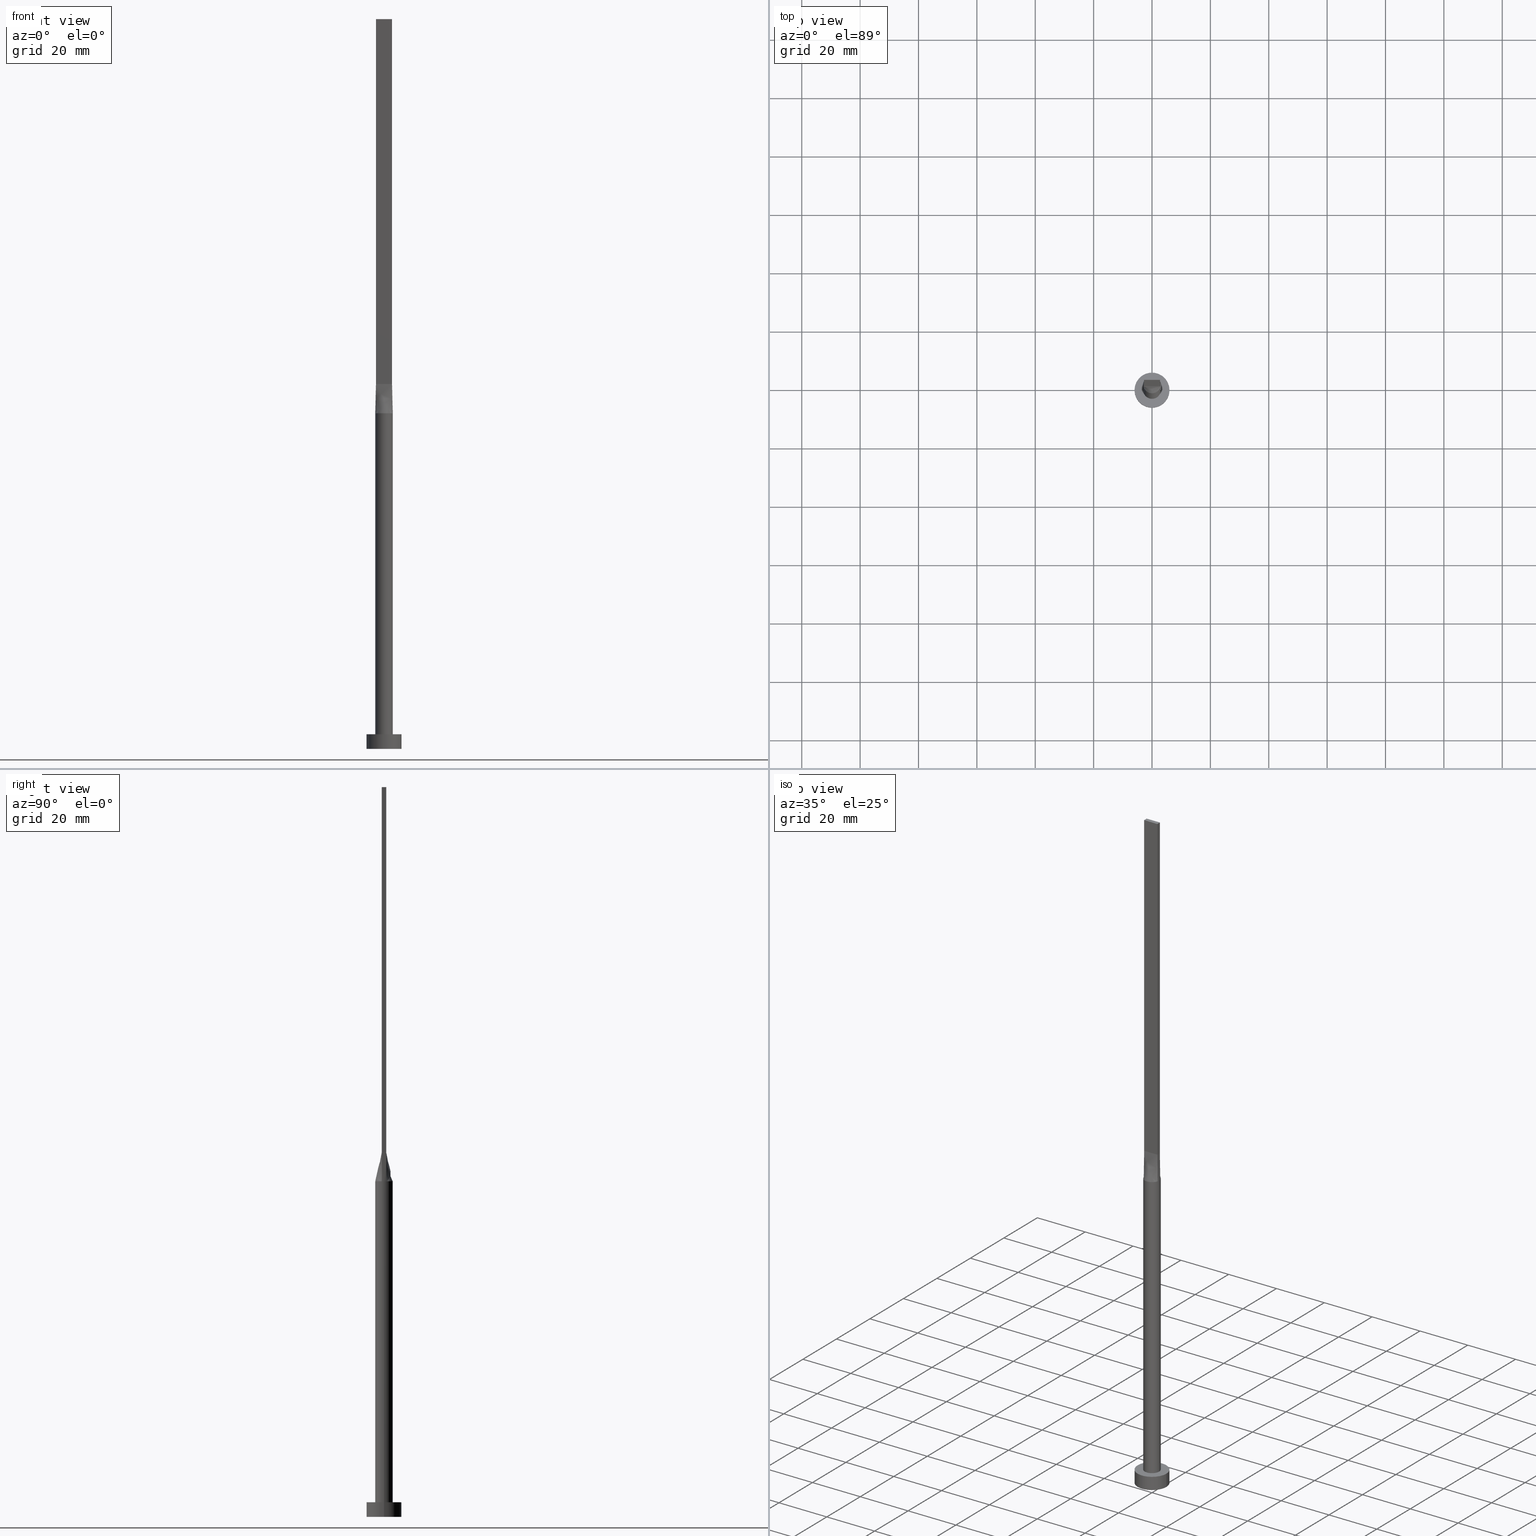
[diagram: canonical four-view strip — front | top / right | iso, engineering-drawing reading convention]
A machine part, canonical four-view strip (front | top / right | iso — engineering-drawing reading convention). The complete STEP part file that produces these views, byte-faithful:
ISO-10303-21;
HEADER;
FILE_DESCRIPTION (( 'STEP AP203' ),
    '1' );
FILE_NAME ('fb9e.STEP',
    '2023-02-13T11:39:00',
    ( '' ),
    ( '' ),
    'SwSTEP 2.0',
    'SolidWorks 2019',
    '' );
FILE_SCHEMA (( 'CONFIG_CONTROL_DESIGN' ));
ENDSEC;

DATA;
#1 = DIRECTION ( 'NONE',  ( 0.000000000000000000, 0.000000000000000000, 1.000000000000000000 ) ) ;
#2 = VECTOR ( 'NONE', #149, 1000.000000000000114 ) ;
#3 = PERSON_AND_ORGANIZATION ( #129, #578 ) ;
#4 = LINE ( 'NONE', #288, #537 ) ;
#5 = ORIENTED_EDGE ( 'NONE', *, *, #411, .T. ) ;
#6 = LINE ( 'NONE', #159, #24 ) ;
#7 = CARTESIAN_POINT ( 'NONE',  ( 2.248179627679384840, -2.014142483996542055, 114.9999999999999858 ) ) ;
#8 = DIRECTION ( 'NONE',  ( -0.000000000000000000, -0.000000000000000000, -1.000000000000000000 ) ) ;
#9 = ADVANCED_FACE ( 'NONE', ( #233 ), #440, .T. ) ;
#10 = ORIENTED_EDGE ( 'NONE', *, *, #433, .T. ) ;
#11 = DESIGN_CONTEXT ( 'detailed design', #465, 'design' ) ;
#12 = CARTESIAN_POINT ( 'NONE',  ( 2.830829925251657997, -1.022044525068636078, 115.0000000000000000 ) ) ;
#13 = CARTESIAN_POINT ( 'NONE',  ( 2.750000000000000000, -0.7499999999999997780, 125.0000000000000000 ) ) ;
#14 = ORIENTED_EDGE ( 'NONE', *, *, #191, .F. ) ;
#15 = CARTESIAN_POINT ( 'NONE',  ( 2.750000000000000000, -0.7499999999999997780, 250.0000000000000000 ) ) ;
#16 = VERTEX_POINT ( 'NONE', #431 ) ;
#17 = CARTESIAN_POINT ( 'NONE',  ( -2.750000000000000000, 0.7500000000000002220, 125.0000000000000000 ) ) ;
#18 = FACE_OUTER_BOUND ( 'NONE', #497, .T. ) ;
#19 = CARTESIAN_POINT ( 'NONE',  ( 0.000000000000000000, 0.000000000000000000, 250.0000000000000000 ) ) ;
#20 = DIRECTION ( 'NONE',  ( 0.000000000000000000, 0.000000000000000000, 1.000000000000000000 ) ) ;
#21 = CARTESIAN_POINT ( 'NONE',  ( -2.894291463713196677, 0.7893522173763257710, 115.0000000000000000 ) ) ;
#22 = CYLINDRICAL_SURFACE ( 'NONE', #270, 3.000000000000000444 ) ;
#23 = VECTOR ( 'NONE', #207, 1000.000000000000114 ) ;
#24 = VECTOR ( 'NONE', #252, 1000.000000000000000 ) ;
#25 = CARTESIAN_POINT ( 'NONE',  ( -2.750000000000000000, 0.7500000000000002220, 250.0000000000000000 ) ) ;
#26 = CARTESIAN_POINT ( 'NONE',  ( 0.9166666666666661856, -0.7499999999999995559, 125.0000000000000000 ) ) ;
#27 = CARTESIAN_POINT ( 'NONE',  ( -2.894291463713197121, -0.7893522173763259930, 115.0000000000000000 ) ) ;
#28 = VECTOR ( 'NONE', #254, 1000.000000000000000 ) ;
#29 = CARTESIAN_POINT ( 'NONE',  ( 6.000000000000000888, 7.347880794884120722E-16, 5.000000000000000000 ) ) ;
#30 = CARTESIAN_POINT ( 'NONE',  ( 0.000000000000000000, 0.000000000000000000, 5.000000000000000000 ) ) ;
#31 = CARTESIAN_POINT ( 'NONE',  ( 0.3818979204996068022, -3.000000000000001332, 114.9999999999999858 ) ) ;
#32 = VERTEX_POINT ( 'NONE', #138 ) ;
#33 = CARTESIAN_POINT ( 'NONE',  ( 3.000000000000000444, 0.2678361673275868049, 114.9999999999999858 ) ) ;
#34 = CARTESIAN_POINT ( 'NONE',  ( -6.000000000000000888, 0.000000000000000000, 5.000000000000000000 ) ) ;
#35 = CARTESIAN_POINT ( 'NONE',  ( -0.4583333333333337589, -0.7499999999999995559, 125.0000000000000000 ) ) ;
#36 = ORIENTED_EDGE ( 'NONE', *, *, #62, .T. ) ;
#37 = DIRECTION ( 'NONE',  ( 1.000000000000000000, 0.000000000000000000, 0.000000000000000000 ) ) ;
#38 = VECTOR ( 'NONE', #438, 1000.000000000000114 ) ;
#39 = CARTESIAN_POINT ( 'NONE',  ( 2.750000000000000000, 0.5000000000000003331, 125.0000000000000000 ) ) ;
#40 = APPROVAL_DATE_TIME ( #375, #320 ) ;
#41 = FACE_OUTER_BOUND ( 'NONE', #239, .T. ) ;
#42 = B_SPLINE_CURVE_WITH_KNOTS ( 'NONE', 3,
 ( #509, #513, #215, #176, #227, #344, #74, #471, #556, #72, #314, #119, #121, #511, #69, #396, #123, #301 ),
 .UNSPECIFIED., .F., .F.,
 ( 4, 2, 2, 2, 2, 2, 2, 2, 4 ),
 ( 0.000000000000000000, 0.1250000000000000000, 0.2500000000000000000, 0.3750000000000000000, 0.5000000000000000000, 0.6250000000000000000, 0.7500000000000000000, 0.8750000000000000000, 1.000000000000000000 ),
 .UNSPECIFIED. ) ;
#43 = EDGE_CURVE ( 'NONE', #16, #478, #543, .T. ) ;
#44 = APPROVAL_STATUS ( 'not_yet_approved' ) ;
#45 = EDGE_LOOP ( 'NONE', ( #395, #491, #36, #368, #581, #401 ) ) ;
#46 = ORIENTED_EDGE ( 'NONE', *, *, #384, .T. ) ;
#47 = VERTEX_POINT ( 'NONE', #265 ) ;
#48 = APPROVAL_STATUS ( 'not_yet_approved' ) ;
#49 = ORIENTED_EDGE ( 'NONE', *, *, #271, .T. ) ;
#50 = ORIENTED_EDGE ( 'NONE', *, *, #466, .F. ) ;
#51 = PERSON_AND_ORGANIZATION_ROLE ( 'classification_officer' ) ;
#52 = CC_DESIGN_SECURITY_CLASSIFICATION ( #353, ( #203 ) ) ;
#53 = PLANE ( 'NONE',  #550 ) ;
#54 = APPLICATION_PROTOCOL_DEFINITION ( 'international standard', 'config_control_design', 1994, #465 ) ;
#55 = DIRECTION ( 'NONE',  ( 1.000000000000000000, 0.000000000000000000, 0.000000000000000000 ) ) ;
#56 = CARTESIAN_POINT ( 'NONE',  ( 2.520833333333333037, 0.7500000000000002220, 125.0000000000000000 ) ) ;
#57 = VERTEX_POINT ( 'NONE', #29 ) ;
#58 = DIRECTION ( 'NONE',  ( 0.000000000000000000, 0.000000000000000000, 1.000000000000000000 ) ) ;
#59 = CARTESIAN_POINT ( 'NONE',  ( 0.000000000000000000, 0.000000000000000000, 5.000000000000000000 ) ) ;
#60 = VECTOR ( 'NONE', #308, 1000.000000000000000 ) ;
#61 = CARTESIAN_POINT ( 'NONE',  ( 1.604166666666666297, -0.7499999999999997780, 125.0000000000000000 ) ) ;
#62 = EDGE_CURVE ( 'NONE', #160, #108, #132, .T. ) ;
#63 = FACE_OUTER_BOUND ( 'NONE', #373, .T. ) ;
#64 = CARTESIAN_POINT ( 'NONE',  ( 1.604166666666666519, 0.7500000000000002220, 125.0000000000000000 ) ) ;
#65 = CIRCLE ( 'NONE', #390, 6.000000000000000888 ) ;
#66 = LINE ( 'NONE', #164, #376 ) ;
#67 = PLANE ( 'NONE',  #323 ) ;
#68 = ORIENTED_EDGE ( 'NONE', *, *, #191, .T. ) ;
#69 = CARTESIAN_POINT ( 'NONE',  ( -2.442412046818596139, 1.765588549521969641, 115.0000000000000142 ) ) ;
#70 = CYLINDRICAL_SURFACE ( 'NONE', #181, 3.000000000000000444 ) ;
#71 = EDGE_CURVE ( 'NONE', #444, #286, #328, .T. ) ;
#72 = CARTESIAN_POINT ( 'NONE',  ( -0.3818979204996078569, 3.000000000000000888, 114.9999999999999858 ) ) ;
#73 = VECTOR ( 'NONE', #541, 1000.000000000000000 ) ;
#74 = CARTESIAN_POINT ( 'NONE',  ( 1.447928580458859305, 2.653161878569118670, 115.0000000000000142 ) ) ;
#75 = AXIS2_PLACEMENT_3D ( 'NONE', #474, #435, #84 ) ;
#76 = LINE ( 'NONE', #355, #60 ) ;
#77 = ORIENTED_EDGE ( 'NONE', *, *, #100, .T. ) ;
#78 = CARTESIAN_POINT ( 'NONE',  ( 0.000000000000000000, 0.000000000000000000, 115.0000000000000000 ) ) ;
#79 = CARTESIAN_POINT ( 'NONE',  ( 0.000000000000000000, 0.000000000000000000, 0.000000000000000000 ) ) ;
#80 = VECTOR ( 'NONE', #423, 1000.000000000000000 ) ;
#81 = ORIENTED_EDGE ( 'NONE', *, *, #470, .T. ) ;
#82 = AXIS2_PLACEMENT_3D ( 'NONE', #79, #255, #305 ) ;
#83 = ORIENTED_EDGE ( 'NONE', *, *, #135, .T. ) ;
#84 = DIRECTION ( 'NONE',  ( 1.000000000000000000, -5.329070518200751394E-15, 0.000000000000000000 ) ) ;
#85 = CARTESIAN_POINT ( 'NONE',  ( -0.3818979204996094667, -3.000000000000000000, 115.0000000000000142 ) ) ;
#86 = CARTESIAN_POINT ( 'NONE',  ( -2.442412046818594806, -1.765588549521968975, 114.9999999999999716 ) ) ;
#87 = ORIENTED_EDGE ( 'NONE', *, *, #433, .F. ) ;
#88 = DIRECTION ( 'NONE',  ( 0.000000000000000000, 0.000000000000000000, 1.000000000000000000 ) ) ;
#89 = PRODUCT_DEFINITION ( 'NEZN�M�', '', #203, #11 ) ;
#90 = VECTOR ( 'NONE', #524, 1000.000000000000000 ) ;
#91 = ORIENTED_EDGE ( 'NONE', *, *, #532, .T. ) ;
#92 = ADVANCED_FACE ( 'NONE', ( #18 ), #334, .T. ) ;
#93 = DIRECTION ( 'NONE',  ( 0.000000000000000000, 0.000000000000000000, 1.000000000000000000 ) ) ;
#94 = ORIENTED_EDGE ( 'NONE', *, *, #230, .F. ) ;
#95 = VECTOR ( 'NONE', #555, 1000.000000000000000 ) ;
#96 = DATE_AND_TIME ( #278, #508 ) ;
#97 = CARTESIAN_POINT ( 'NONE',  ( 0.000000000000000000, 0.000000000000000000, 115.0000000000000000 ) ) ;
#98 = ORIENTED_EDGE ( 'NONE', *, *, #135, .F. ) ;
#99 = PERSON_AND_ORGANIZATION ( #129, #578 ) ;
#100 = EDGE_CURVE ( 'NONE', #47, #444, #109, .T. ) ;
#101 = CARTESIAN_POINT ( 'NONE',  ( -2.248179627679385728, 2.014142483996540278, 114.9999999999999858 ) ) ;
#102 = ORIENTED_EDGE ( 'NONE', *, *, #329, .T. ) ;
#103 = UNCERTAINTY_MEASURE_WITH_UNIT (LENGTH_MEASURE( 1.000000000000000082E-05 ), #217, 'distance_accuracy_value', 'NONE');
#104 = PERSON_AND_ORGANIZATION ( #129, #578 ) ;
#105 = CARTESIAN_POINT ( 'NONE',  ( -2.442412046818596139, 1.765588549521969641, 115.0000000000000142 ) ) ;
#106 = ORIENTED_EDGE ( 'NONE', *, *, #501, .F. ) ;
#107 = CARTESIAN_POINT ( 'NONE',  ( 0.000000000000000000, 0.000000000000000000, 5.000000000000000000 ) ) ;
#108 = VERTEX_POINT ( 'NONE', #424 ) ;
#109 = LINE ( 'NONE', #290, #289 ) ;
#110 = CARTESIAN_POINT ( 'NONE',  ( 2.442412046818595250, 1.765588549521970529, 114.9999999999999858 ) ) ;
#111 = CC_DESIGN_PERSON_AND_ORGANIZATION_ASSIGNMENT ( #99, #359, ( #203 ) ) ;
#112 = CARTESIAN_POINT ( 'NONE',  ( -2.894291463713197121, -0.7893522173763257710, 115.0000000000000000 ) ) ;
#113 = CIRCLE ( 'NONE', #450, 3.000000000000000444 ) ;
#114 = LOCAL_TIME ( 12, 39, 0.000000000000000000, #455 ) ;
#115 = CARTESIAN_POINT ( 'NONE',  ( -2.750000000000000000, -0.7499999999999994449, 125.0000000000000000 ) ) ;
#116 = FACE_OUTER_BOUND ( 'NONE', #416, .T. ) ;
#117 = DIRECTION ( 'NONE',  ( -1.000000000000000000, 0.000000000000000000, 0.000000000000000000 ) ) ;
#118 =( NAMED_UNIT ( * ) SI_UNIT ( $, .STERADIAN. ) SOLID_ANGLE_UNIT ( ) );
#119 = CARTESIAN_POINT ( 'NONE',  ( -1.447928580458858416, 2.653161878569119558, 115.0000000000000000 ) ) ;
#120 = CIRCLE ( 'NONE', #473, 3.000000000000000444 ) ;
#121 = CARTESIAN_POINT ( 'NONE',  ( -1.751288851749021491, 2.458468820606022565, 115.0000000000000142 ) ) ;
#122 = CARTESIAN_POINT ( 'NONE',  ( 2.822145731856598339, 0.7696761086881640512, 120.0000000000000000 ) ) ;
#123 = CARTESIAN_POINT ( 'NONE',  ( -2.830829925251659329, 1.022044525068634302, 115.0000000000000284 ) ) ;
#124 = VERTEX_POINT ( 'NONE', #169 ) ;
#125 = CIRCLE ( 'NONE', #295, 3.000000000000000444 ) ;
#126 = AXIS2_PLACEMENT_3D ( 'NONE', #405, #93, #573 ) ;
#127 = APPROVAL ( #48, 'NEUR�EN�' ) ;
#128 = CARTESIAN_POINT ( 'NONE',  ( 2.894291463713196677, -0.7893522173763282135, 115.0000000000000000 ) ) ;
#129 = PERSON ( 'NEUR�EN�', 'NEUR�EN�', 'NEUR�EN�', ('NEUR�EN�'), ('NEUR�EN�'), ('NEUR�EN�') ) ;
#130 = CARTESIAN_POINT ( 'NONE',  ( -1.751288851749022379, -2.458468820606022565, 114.9999999999999858 ) ) ;
#131 = ORIENTED_EDGE ( 'NONE', *, *, #245, .T. ) ;
#132 = CIRCLE ( 'NONE', #365, 3.000000000000000444 ) ;
#133 = VERTEX_POINT ( 'NONE', #17 ) ;
#134 = APPLICATION_PROTOCOL_DEFINITION ( 'international standard', 'config_control_design', 1994, #247 ) ;
#135 = EDGE_CURVE ( 'NONE', #32, #133, #484, .T. ) ;
#136 = DIRECTION ( 'NONE',  ( 1.000000000000000000, 0.000000000000000000, -0.000000000000000000 ) ) ;
#137 = EDGE_CURVE ( 'NONE', #224, #453, #155, .T. ) ;
#138 = CARTESIAN_POINT ( 'NONE',  ( -2.894506632021299541, 0.7894116946786272626, 115.0000000000000000 ) ) ;
#139 = APPROVAL_ROLE ( '' ) ;
#140 = CARTESIAN_POINT ( 'NONE',  ( -2.750000000000000000, -0.2500000000000013878, 125.0000000000000000 ) ) ;
#141 =( GEOMETRIC_REPRESENTATION_CONTEXT ( 3 ) GLOBAL_UNCERTAINTY_ASSIGNED_CONTEXT ( ( #103 ) ) GLOBAL_UNIT_ASSIGNED_CONTEXT ( ( #217, #346, #118 ) ) REPRESENTATION_CONTEXT ( 'NONE', 'WORKASPACE' ) );
#142 = ORIENTED_EDGE ( 'NONE', *, *, #272, .F. ) ;
#143 = PERSON_AND_ORGANIZATION ( #129, #578 ) ;
#144 = CC_DESIGN_DATE_AND_TIME_ASSIGNMENT ( #322, #229, ( #353 ) ) ;
#145 = ADVANCED_FACE ( 'NONE', ( #163 ), #275, .T. ) ;
#146 = DATE_AND_TIME ( #480, #167 ) ;
#147 = CARTESIAN_POINT ( 'NONE',  ( -1.751288851749021491, 2.458468820606022565, 115.0000000000000142 ) ) ;
#148 = ORIENTED_EDGE ( 'NONE', *, *, #152, .T. ) ;
#149 = DIRECTION ( 'NONE',  ( 0.01442753284129401174, -0.003934781683989196054, 0.9998881756422629552 ) ) ;
#150 = DIRECTION ( 'NONE',  ( 1.000000000000000000, 0.000000000000000000, 0.000000000000000000 ) ) ;
#151 = PERSON_AND_ORGANIZATION_ROLE ( 'design_owner' ) ;
#152 = EDGE_CURVE ( 'NONE', #57, #124, #65, .T. ) ;
#153 = CARTESIAN_POINT ( 'NONE',  ( 1.145833333333333259, 0.7500000000000003331, 125.0000000000000000 ) ) ;
#154 = ORIENTED_EDGE ( 'NONE', *, *, #551, .F. ) ;
#155 = LINE ( 'NONE', #333, #23 ) ;
#156 = DIRECTION ( 'NONE',  ( -0.000000000000000000, -0.000000000000000000, -1.000000000000000000 ) ) ;
#157 = CARTESIAN_POINT ( 'NONE',  ( 0.000000000000000000, 0.000000000000000000, 5.000000000000000000 ) ) ;
#158 = ORIENTED_EDGE ( 'NONE', *, *, #470, .F. ) ;
#159 = CARTESIAN_POINT ( 'NONE',  ( -3.000000000000000444, 0.000000000000000000, 115.0000000000000000 ) ) ;
#160 = VERTEX_POINT ( 'NONE', #436 ) ;
#161 = ADVANCED_FACE ( 'NONE', ( #389, #261 ), #516, .T. ) ;
#162 = DIRECTION ( 'NONE',  ( -1.000000000000000000, 0.000000000000000000, 0.000000000000000000 ) ) ;
#163 = FACE_OUTER_BOUND ( 'NONE', #349, .T. ) ;
#164 = CARTESIAN_POINT ( 'NONE',  ( 2.750000000000000000, 0.7500000000000002220, 250.0000000000000000 ) ) ;
#165 = LINE ( 'NONE', #338, #28 ) ;
#166 = FACE_OUTER_BOUND ( 'NONE', #258, .T. ) ;
#167 = LOCAL_TIME ( 12, 39, 0.000000000000000000, #282 ) ;
#168 = DIRECTION ( 'NONE',  ( -0.000000000000000000, -0.000000000000000000, -1.000000000000000000 ) ) ;
#169 = CARTESIAN_POINT ( 'NONE',  ( -6.000000000000000888, 0.000000000000000000, 5.000000000000000000 ) ) ;
#170 = CARTESIAN_POINT ( 'NONE',  ( -2.750000000000000000, 0.7500000000000002220, 125.0000000000000000 ) ) ;
#171 = DIRECTION ( 'NONE',  ( -1.000000000000000000, 0.000000000000000000, 0.000000000000000000 ) ) ;
#172 = ADVANCED_FACE ( 'NONE', ( #276 ), #510, .T. ) ;
#173 = CIRCLE ( 'NONE', #512, 6.000000000000000888 ) ;
#174 = CIRCLE ( 'NONE', #234, 3.000000000000000444 ) ;
#175 = CARTESIAN_POINT ( 'NONE',  ( -2.750000000000000000, -0.7499999999999994449, 250.0000000000000000 ) ) ;
#176 = CARTESIAN_POINT ( 'NONE',  ( 2.442412046818595250, 1.765588549521970529, 114.9999999999999858 ) ) ;
#177 = ADVANCED_FACE ( 'NONE', ( #179 ), #256, .F. ) ;
#178 = CARTESIAN_POINT ( 'NONE',  ( -2.291666666666666519, -0.7499999999999995559, 125.0000000000000000 ) ) ;
#179 = FACE_OUTER_BOUND ( 'NONE', #357, .T. ) ;
#180 = CARTESIAN_POINT ( 'NONE',  ( -2.750000000000000000, 0.7500000000000002220, 125.0000000000000000 ) ) ;
#181 = AXIS2_PLACEMENT_3D ( 'NONE', #78, #237, #210 ) ;
#182 = CARTESIAN_POINT ( 'NONE',  ( -0.7628506052746809596, -2.924692134573154245, 114.9999999999999858 ) ) ;
#183 = EDGE_LOOP ( 'NONE', ( #569, #148 ) ) ;
#184 = LINE ( 'NONE', #464, #374 ) ;
#185 = CARTESIAN_POINT ( 'NONE',  ( -2.750000000000000000, 0.2499999999999984457, 125.0000000000000000 ) ) ;
#186 = CARTESIAN_POINT ( 'NONE',  ( 2.750000000000000000, 0.2500000000000004441, 125.0000000000000000 ) ) ;
#187 = SECURITY_CLASSIFICATION_LEVEL ( 'unclassified' ) ;
#188 = DATE_AND_TIME ( #403, #114 ) ;
#189 = CIRCLE ( 'NONE', #567, 3.000000000000000444 ) ;
#190 = CC_DESIGN_PERSON_AND_ORGANIZATION_ASSIGNMENT ( #287, #51, ( #353 ) ) ;
#191 = EDGE_CURVE ( 'NONE', #202, #47, #214, .T. ) ;
#192 = ORIENTED_EDGE ( 'NONE', *, *, #358, .F. ) ;
#193 = CC_DESIGN_APPROVAL ( #320, ( #203 ) ) ;
#194 = DIRECTION ( 'NONE',  ( -0.000000000000000000, -0.000000000000000000, -1.000000000000000000 ) ) ;
#195 = APPROVAL_DATE_TIME ( #96, #127 ) ;
#196 = CARTESIAN_POINT ( 'NONE',  ( 3.000000000000000888, 4.817174831141495148E-17, 115.0000000000000000 ) ) ;
#197 = VERTEX_POINT ( 'NONE', #299 ) ;
#198 = APPROVAL_ROLE ( '' ) ;
#199 = EDGE_CURVE ( 'NONE', #47, #224, #387, .T. ) ;
#200 = AXIS2_PLACEMENT_3D ( 'NONE', #372, #162, #335 ) ;
#201 = CARTESIAN_POINT ( 'NONE',  ( 2.830829925251657997, 1.022044525068634302, 115.0000000000000000 ) ) ;
#202 = VERTEX_POINT ( 'NONE', #262 ) ;
#203 = PRODUCT_DEFINITION_FORMATION_WITH_SPECIFIED_SOURCE ( 'LIBOVOLN�', '', #576, .NOT_KNOWN. ) ;
#204 = PLANE ( 'NONE',  #413 ) ;
#205 = CARTESIAN_POINT ( 'NONE',  ( -2.894489875237701959, -0.7894071376467488577, 115.0000000000000000 ) ) ;
#206 = ORIENTED_EDGE ( 'NONE', *, *, #243, .T. ) ;
#207 = DIRECTION ( 'NONE',  ( -0.01442753284129405511, -0.003934781683989273249, -0.9998881756422629552 ) ) ;
#208 = FACE_OUTER_BOUND ( 'NONE', #45, .T. ) ;
#209 = CARTESIAN_POINT ( 'NONE',  ( 2.291666666666666519, -0.7499999999999997780, 125.0000000000000000 ) ) ;
#210 = DIRECTION ( 'NONE',  ( -1.000000000000000000, 0.000000000000000000, 0.000000000000000000 ) ) ;
#211 = DIRECTION ( 'NONE',  ( 1.000000000000000000, 0.000000000000000000, 0.000000000000000000 ) ) ;
#212 = DIRECTION ( 'NONE',  ( -0.000000000000000000, -0.000000000000000000, -1.000000000000000000 ) ) ;
#213 = FACE_OUTER_BOUND ( 'NONE', #500, .T. ) ;
#214 = LINE ( 'NONE', #221, #307 ) ;
#215 = CARTESIAN_POINT ( 'NONE',  ( 2.733316749964668446, 1.269511353635831341, 115.0000000000000142 ) ) ;
#216 = VECTOR ( 'NONE', #156, 1000.000000000000000 ) ;
#217 =( LENGTH_UNIT ( ) NAMED_UNIT ( * ) SI_UNIT ( .MILLI., .METRE. ) );
#218 = CARTESIAN_POINT ( 'NONE',  ( 2.894482401701604424, 0.7894050286368272662, 115.0000000000000000 ) ) ;
#219 = AXIS2_PLACEMENT_3D ( 'NONE', #273, #400, #571 ) ;
#220 = CC_DESIGN_APPROVAL ( #277, ( #89 ) ) ;
#221 = CARTESIAN_POINT ( 'NONE',  ( -2.750000000000000000, 0.7500000000000002220, 250.0000000000000000 ) ) ;
#222 = CARTESIAN_POINT ( 'NONE',  ( 3.000000000000000888, -0.2678361673275873600, 115.0000000000000142 ) ) ;
#223 = CARTESIAN_POINT ( 'NONE',  ( -1.833333333333333481, -0.7499999999999995559, 125.0000000000000000 ) ) ;
#224 = VERTEX_POINT ( 'NONE', #352 ) ;
#225 = CARTESIAN_POINT ( 'NONE',  ( -2.894291463713196677, 0.7893522173763264371, 115.0000000000000000 ) ) ;
#226 = ADVANCED_FACE ( 'NONE', ( #63 ), #67, .F. ) ;
#227 = CARTESIAN_POINT ( 'NONE',  ( 2.248179627679386172, 2.014142483996539834, 115.0000000000000142 ) ) ;
#228 = ORIENTED_EDGE ( 'NONE', *, *, #565, .T. ) ;
#229 = DATE_TIME_ROLE ( 'classification_date' ) ;
#230 = EDGE_CURVE ( 'NONE', #286, #317, #165, .T. ) ;
#231 = DIRECTION ( 'NONE',  ( 0.000000000000000000, -1.000000000000000000, 0.000000000000000000 ) ) ;
#232 = CC_DESIGN_PERSON_AND_ORGANIZATION_ASSIGNMENT ( #408, #498, ( #89 ) ) ;
#233 = FACE_OUTER_BOUND ( 'NONE', #439, .T. ) ;
#234 = AXIS2_PLACEMENT_3D ( 'NONE', #362, #88, #37 ) ;
#235 = DIRECTION ( 'NONE',  ( 0.000000000000000000, -0.000000000000000000, -1.000000000000000000 ) ) ;
#236 = CARTESIAN_POINT ( 'NONE',  ( -1.447928580458858416, 2.653161878569119558, 115.0000000000000000 ) ) ;
#237 = DIRECTION ( 'NONE',  ( -0.000000000000000000, -0.000000000000000000, -1.000000000000000000 ) ) ;
#238 = DIRECTION ( 'NONE',  ( 0.000000000000000000, 0.000000000000000000, 1.000000000000000000 ) ) ;
#239 = EDGE_LOOP ( 'NONE', ( #483, #321 ) ) ;
#240 = APPROVAL_ROLE ( '' ) ;
#241 = DIRECTION ( 'NONE',  ( -0.000000000000000000, -0.000000000000000000, -1.000000000000000000 ) ) ;
#242 = VERTEX_POINT ( 'NONE', #422 ) ;
#243 = EDGE_CURVE ( 'NONE', #242, #274, #342, .T. ) ;
#244 = ORIENTED_EDGE ( 'NONE', *, *, #466, .T. ) ;
#245 = EDGE_CURVE ( 'NONE', #478, #503, #120, .T. ) ;
#246 = AXIS2_PLACEMENT_3D ( 'NONE', #494, #58, #417 ) ;
#247 = APPLICATION_CONTEXT ( 'configuration controlled 3d designs of mechanical parts and assemblies' ) ;
#248 = CARTESIAN_POINT ( 'NONE',  ( 2.733316749964668446, 1.269511353635831341, 115.0000000000000142 ) ) ;
#249 = ORIENTED_EDGE ( 'NONE', *, *, #358, .T. ) ;
#250 = DIRECTION ( 'NONE',  ( -1.000000000000000000, 0.000000000000000000, 0.000000000000000000 ) ) ;
#251 = CARTESIAN_POINT ( 'NONE',  ( 1.447928580458859305, 2.653161878569118670, 115.0000000000000142 ) ) ;
#252 = DIRECTION ( 'NONE',  ( -0.000000000000000000, -0.000000000000000000, -1.000000000000000000 ) ) ;
#253 = FACE_OUTER_BOUND ( 'NONE', #460, .T. ) ;
#254 = DIRECTION ( 'NONE',  ( -0.000000000000000000, 1.000000000000000000, -0.000000000000000000 ) ) ;
#255 = DIRECTION ( 'NONE',  ( 0.000000000000000000, 0.000000000000000000, 1.000000000000000000 ) ) ;
#256 = PLANE ( 'NONE',  #354 ) ;
#257 = LINE ( 'NONE', #170, #345 ) ;
#258 = EDGE_LOOP ( 'NONE', ( #539, #68, #77, #228 ) ) ;
#259 = LINE ( 'NONE', #122, #38 ) ;
#260 = CC_DESIGN_DATE_AND_TIME_ASSIGNMENT ( #188, #325, ( #89 ) ) ;
#261 = FACE_OUTER_BOUND ( 'NONE', #183, .T. ) ;
#262 = CARTESIAN_POINT ( 'NONE',  ( -2.750000000000000000, 0.7500000000000002220, 250.0000000000000000 ) ) ;
#263 = CIRCLE ( 'NONE', #82, 6.000000000000000888 ) ;
#264 = ORIENTED_EDGE ( 'NONE', *, *, #62, .F. ) ;
#265 = CARTESIAN_POINT ( 'NONE',  ( -2.750000000000000000, -0.7499999999999994449, 250.0000000000000000 ) ) ;
#266 = CARTESIAN_POINT ( 'NONE',  ( -1.145833333333333703, -0.7499999999999995559, 125.0000000000000000 ) ) ;
#267 = VERTEX_POINT ( 'NONE', #476 ) ;
#268 = ADVANCED_BREP_SHAPE_REPRESENTATION ( 'fb9e', ( #528, #126 ), #141 ) ;
#269 = CARTESIAN_POINT ( 'NONE',  ( -1.447928580458859749, -2.653161878569118226, 114.9999999999999858 ) ) ;
#270 = AXIS2_PLACEMENT_3D ( 'NONE', #386, #168, #171 ) ;
#271 = EDGE_CURVE ( 'NONE', #503, #317, #259, .T. ) ;
#272 = EDGE_CURVE ( 'NONE', #224, #286, #547, .T. ) ;
#273 = CARTESIAN_POINT ( 'NONE',  ( 0.000000000000000000, 0.000000000000000000, 0.000000000000000000 ) ) ;
#274 = VERTEX_POINT ( 'NONE', #414 ) ;
#275 = B_SPLINE_SURFACE_WITH_KNOTS ( 'NONE', 3, 1, ( 
 ( #112, #577 ),
 ( #487, #492 ),
 ( #366, #178 ),
 ( #86, #223 ),
 ( #312, #310 ),
 ( #130, #266 ),
 ( #269, #394 ),
 ( #182, #35 ),
 ( #85, #475 ),
 ( #31, #519 ),
 ( #566, #391 ),
 ( #351, #26 ),
 ( #437, #418 ),
 ( #7, #61 ),
 ( #542, #291 ),
 ( #410, #209 ),
 ( #12, #546 ),
 ( #331, #456 ) ),
 .UNSPECIFIED., .F., .F., .F.,
 ( 4, 2, 2, 2, 2, 2, 2, 2, 4 ),
 ( 2, 2 ),
 ( 0.000000000000000000, 0.1250000000000000000, 0.2500000000000000000, 0.3750000000000000000, 0.5000000000000000000, 0.6250000000000000000, 0.7500000000000000000, 0.8750000000000000000, 1.000000000000000000 ),
 ( 0.000000000000000000, 1.000000000000000000 ),
 .UNSPECIFIED. ) ;
#276 = FACE_OUTER_BOUND ( 'NONE', #481, .T. ) ;
#277 = APPROVAL ( #44, 'NEUR�EN�' ) ;
#278 = CALENDAR_DATE ( 2023, 13, 2 ) ;
#279 = ORIENTED_EDGE ( 'NONE', *, *, #501, .T. ) ;
#280 = ORIENTED_EDGE ( 'NONE', *, *, #43, .T. ) ;
#281 = EDGE_CURVE ( 'NONE', #197, #202, #66, .T. ) ;
#282 = COORDINATED_UNIVERSAL_TIME_OFFSET ( 1, 0, .AHEAD. ) ;
#283 = DIRECTION ( 'NONE',  ( 0.000000000000000000, 0.000000000000000000, 1.000000000000000000 ) ) ;
#284 = B_SPLINE_SURFACE_WITH_KNOTS ( 'NONE', 3, 1, ( 
 ( #367, #535 ),
 ( #201, #56 ),
 ( #248, #409 ),
 ( #110, #298 ),
 ( #461, #64 ),
 ( #406, #153 ),
 ( #251, #420 ),
 ( #330, #383 ),
 ( #499, #549 ),
 ( #339, #533 ),
 ( #452, #462 ),
 ( #236, #580 ),
 ( #147, #326 ),
 ( #101, #285 ),
 ( #105, #426 ),
 ( #388, #425 ),
 ( #558, #560 ),
 ( #21, #428 ) ),
 .UNSPECIFIED., .F., .F., .F.,
 ( 4, 2, 2, 2, 2, 2, 2, 2, 4 ),
 ( 2, 2 ),
 ( 0.000000000000000000, 0.1250000000000000000, 0.2500000000000000000, 0.3750000000000000000, 0.5000000000000000000, 0.6250000000000000000, 0.7500000000000000000, 0.8750000000000000000, 1.000000000000000000 ),
 ( 0.000000000000000000, 1.000000000000000000 ),
 .UNSPECIFIED. ) ;
#285 = CARTESIAN_POINT ( 'NONE',  ( -1.604166666666666741, 0.7500000000000002220, 125.0000000000000000 ) ) ;
#286 = VERTEX_POINT ( 'NONE', #13 ) ;
#287 = PERSON_AND_ORGANIZATION ( #129, #578 ) ;
#288 = CARTESIAN_POINT ( 'NONE',  ( 2.822145731856598339, -0.7696761086881637182, 120.0000000000000000 ) ) ;
#289 = VECTOR ( 'NONE', #495, 1000.000000000000000 ) ;
#290 = CARTESIAN_POINT ( 'NONE',  ( -2.750000000000000000, -0.7499999999999994449, 250.0000000000000000 ) ) ;
#291 = CARTESIAN_POINT ( 'NONE',  ( 1.833333333333333037, -0.7499999999999997780, 125.0000000000000000 ) ) ;
#292 = PLANE ( 'NONE',  #200 ) ;
#293 = ORIENTED_EDGE ( 'NONE', *, *, #411, .F. ) ;
#294 = CARTESIAN_POINT ( 'NONE',  ( 2.750000000000000000, 0.7500000000000002220, 250.0000000000000000 ) ) ;
#295 = AXIS2_PLACEMENT_3D ( 'NONE', #347, #559, #296 ) ;
#296 = DIRECTION ( 'NONE',  ( 1.000000000000000000, 0.000000000000000000, 0.000000000000000000 ) ) ;
#297 = APPROVAL_PERSON_ORGANIZATION ( #3, #127, #240 ) ;
#298 = CARTESIAN_POINT ( 'NONE',  ( 1.833333333333333037, 0.7500000000000002220, 125.0000000000000000 ) ) ;
#299 = CARTESIAN_POINT ( 'NONE',  ( 2.750000000000000000, 0.7500000000000002220, 250.0000000000000000 ) ) ;
#300 = DIRECTION ( 'NONE',  ( -0.000000000000000000, -0.000000000000000000, -1.000000000000000000 ) ) ;
#301 = CARTESIAN_POINT ( 'NONE',  ( -2.894506632021299541, 0.7894116946786272626, 115.0000000000000000 ) ) ;
#302 = AXIS2_PLACEMENT_3D ( 'NONE', #157, #241, #415 ) ;
#303 = DIRECTION ( 'NONE',  ( -0.000000000000000000, 0.000000000000000000, -1.000000000000000000 ) ) ;
#304 = LOCAL_TIME ( 12, 39, 0.000000000000000000, #531 ) ;
#305 = DIRECTION ( 'NONE',  ( 1.000000000000000000, 0.000000000000000000, 0.000000000000000000 ) ) ;
#306 = ADVANCED_FACE ( 'NONE', ( #253 ), #204, .F. ) ;
#307 = VECTOR ( 'NONE', #517, 1000.000000000000000 ) ;
#308 = DIRECTION ( 'NONE',  ( 0.000000000000000000, 1.000000000000000000, 0.000000000000000000 ) ) ;
#309 = CARTESIAN_POINT ( 'NONE',  ( 2.894291463713196677, 0.7893522173763277694, 115.0000000000000000 ) ) ;
#310 = CARTESIAN_POINT ( 'NONE',  ( -1.604166666666666963, -0.7499999999999995559, 125.0000000000000000 ) ) ;
#311 = CARTESIAN_POINT ( 'NONE',  ( 2.963522232943966106, -0.5355060635301738259, 114.9999999999999858 ) ) ;
#312 = CARTESIAN_POINT ( 'NONE',  ( -2.248179627679386616, -2.014142483996539390, 115.0000000000000142 ) ) ;
#313 = ORIENTED_EDGE ( 'NONE', *, *, #199, .T. ) ;
#314 = CARTESIAN_POINT ( 'NONE',  ( -0.7628506052746797383, 2.924692134573155133, 115.0000000000000142 ) ) ;
#315 = ORIENTED_EDGE ( 'NONE', *, *, #520, .T. ) ;
#316 = PERSON_AND_ORGANIZATION ( #129, #578 ) ;
#317 = VERTEX_POINT ( 'NONE', #402 ) ;
#318 = CARTESIAN_POINT ( 'NONE',  ( -2.963522232943966106, -0.5355060635301720495, 115.0000000000000142 ) ) ;
#319 = ORIENTED_EDGE ( 'NONE', *, *, #137, .F. ) ;
#320 = APPROVAL ( #534, 'NEUR�EN�' ) ;
#321 = ORIENTED_EDGE ( 'NONE', *, *, #532, .F. ) ;
#322 = DATE_AND_TIME ( #399, #397 ) ;
#323 = AXIS2_PLACEMENT_3D ( 'NONE', #419, #382, #548 ) ;
#324 = ORIENTED_EDGE ( 'NONE', *, *, #553, .F. ) ;
#325 = DATE_TIME_ROLE ( 'creation_date' ) ;
#326 = CARTESIAN_POINT ( 'NONE',  ( -1.145833333333333259, 0.7500000000000002220, 125.0000000000000000 ) ) ;
#327 = ORIENTED_EDGE ( 'NONE', *, *, #71, .T. ) ;
#328 = LINE ( 'NONE', #538, #216 ) ;
#329 = EDGE_CURVE ( 'NONE', #453, #16, #174, .T. ) ;
#330 = CARTESIAN_POINT ( 'NONE',  ( 0.7628506052746800714, 2.924692134573154689, 115.0000000000000000 ) ) ;
#331 = CARTESIAN_POINT ( 'NONE',  ( 2.894291463713196677, -0.7893522173763275473, 115.0000000000000000 ) ) ;
#332 = LINE ( 'NONE', #294, #505 ) ;
#333 = CARTESIAN_POINT ( 'NONE',  ( -2.822145731856598783, -0.7696761086881626079, 120.0000000000000000 ) ) ;
#334 = CYLINDRICAL_SURFACE ( 'NONE', #427, 6.000000000000000888 ) ;
#335 = DIRECTION ( 'NONE',  ( 0.000000000000000000, 0.000000000000000000, 1.000000000000000000 ) ) ;
#336 = VECTOR ( 'NONE', #8, 1000.000000000000000 ) ;
#337 = DIRECTION ( 'NONE',  ( 1.000000000000000000, -5.913830031739115543E-17, 0.000000000000000000 ) ) ;
#338 = CARTESIAN_POINT ( 'NONE',  ( 2.750000000000000000, 0.7500000000000002220, 125.0000000000000000 ) ) ;
#339 = CARTESIAN_POINT ( 'NONE',  ( -0.3818979204996078569, 3.000000000000000888, 114.9999999999999858 ) ) ;
#340 = EDGE_LOOP ( 'NONE', ( #378, #324, #279, #206 ) ) ;
#341 = LINE ( 'NONE', #34, #80 ) ;
#342 = CIRCLE ( 'NONE', #219, 6.000000000000000888 ) ;
#343 = DIRECTION ( 'NONE',  ( 0.000000000000000000, 0.000000000000000000, 1.000000000000000000 ) ) ;
#344 = CARTESIAN_POINT ( 'NONE',  ( 1.751288851749022379, 2.458468820606022565, 114.9999999999999858 ) ) ;
#345 = VECTOR ( 'NONE', #552, 1000.000000000000000 ) ;
#346 =( NAMED_UNIT ( * ) PLANE_ANGLE_UNIT ( ) SI_UNIT ( $, .RADIAN. ) );
#347 = CARTESIAN_POINT ( 'NONE',  ( 0.000000000000000000, 0.000000000000000000, 115.0000000000000000 ) ) ;
#348 = AXIS2_PLACEMENT_3D ( 'NONE', #30, #283, #136 ) ;
#349 = EDGE_LOOP ( 'NONE', ( #102, #10, #142, #572 ) ) ;
#350 = CARTESIAN_POINT ( 'NONE',  ( -2.750000000000000000, 0.7500000000000002220, 125.0000000000000000 ) ) ;
#351 = CARTESIAN_POINT ( 'NONE',  ( 1.447928580458857972, -2.653161878569119558, 114.9999999999999858 ) ) ;
#352 = CARTESIAN_POINT ( 'NONE',  ( -2.750000000000000000, -0.7499999999999994449, 125.0000000000000000 ) ) ;
#353 = SECURITY_CLASSIFICATION ( '', '', #187 ) ;
#354 = AXIS2_PLACEMENT_3D ( 'NONE', #25, #557, #303 ) ;
#355 = CARTESIAN_POINT ( 'NONE',  ( 2.750000000000000000, -0.7499999999999997780, 250.0000000000000000 ) ) ;
#356 = COORDINATED_UNIVERSAL_TIME_OFFSET ( 1, 0, .AHEAD. ) ;
#357 = EDGE_LOOP ( 'NONE', ( #5, #521, #14, #81 ) ) ;
#358 = EDGE_CURVE ( 'NONE', #267, #453, #125, .T. ) ;
#359 = PERSON_AND_ORGANIZATION_ROLE ( 'creator' ) ;
#360 = APPROVAL_PERSON_ORGANIZATION ( #143, #277, #139 ) ;
#361 = CARTESIAN_POINT ( 'NONE',  ( -2.963522232943965662, 0.5355060635301726046, 114.9999999999999858 ) ) ;
#362 = CARTESIAN_POINT ( 'NONE',  ( 0.000000000000000000, 0.000000000000000000, 115.0000000000000000 ) ) ;
#363 = ORIENTED_EDGE ( 'NONE', *, *, #43, .F. ) ;
#364 = DIRECTION ( 'NONE',  ( 0.000000000000000000, 0.000000000000000000, 1.000000000000000000 ) ) ;
#365 = AXIS2_PLACEMENT_3D ( 'NONE', #393, #1, #150 ) ;
#366 = CARTESIAN_POINT ( 'NONE',  ( -2.733316749964668446, -1.269511353635829787, 114.9999999999999858 ) ) ;
#367 = CARTESIAN_POINT ( 'NONE',  ( 2.894291463713197121, 0.7893522173763263261, 115.0000000000000000 ) ) ;
#368 = ORIENTED_EDGE ( 'NONE', *, *, #371, .F. ) ;
#369 = CARTESIAN_POINT ( 'NONE',  ( -2.822145731856598339, 0.7696761086881630520, 120.0000000000000000 ) ) ;
#370 = APPROVAL_DATE_TIME ( #146, #277 ) ;
#371 = EDGE_CURVE ( 'NONE', #267, #108, #6, .T. ) ;
#372 = CARTESIAN_POINT ( 'NONE',  ( 2.750000000000000000, -0.7499999999999997780, 250.0000000000000000 ) ) ;
#373 = EDGE_LOOP ( 'NONE', ( #575, #449, #562, #313 ) ) ;
#374 = VECTOR ( 'NONE', #300, 1000.000000000000000 ) ;
#375 = DATE_AND_TIME ( #488, #304 ) ;
#376 = VECTOR ( 'NONE', #250, 1000.000000000000000 ) ;
#377 = CARTESIAN_POINT ( 'NONE',  ( 3.000000000000000444, 3.673940397442060361E-16, 115.0000000000000000 ) ) ;
#378 = ORIENTED_EDGE ( 'NONE', *, *, #520, .F. ) ;
#379 = CYLINDRICAL_SURFACE ( 'NONE', #302, 6.000000000000000888 ) ;
#380 = ORIENTED_EDGE ( 'NONE', *, *, #565, .F. ) ;
#381 = CC_DESIGN_PERSON_AND_ORGANIZATION_ASSIGNMENT ( #316, #451, ( #203 ) ) ;
#382 = DIRECTION ( 'NONE',  ( 5.913830031739115543E-17, 1.000000000000000000, -0.000000000000000000 ) ) ;
#383 = CARTESIAN_POINT ( 'NONE',  ( 0.4583333333333333703, 0.7500000000000003331, 125.0000000000000000 ) ) ;
#384 = EDGE_CURVE ( 'NONE', #32, #267, #113, .T. ) ;
#385 = LINE ( 'NONE', #350, #90 ) ;
#386 = CARTESIAN_POINT ( 'NONE',  ( 0.000000000000000000, 0.000000000000000000, 115.0000000000000000 ) ) ;
#387 = LINE ( 'NONE', #175, #95 ) ;
#388 = CARTESIAN_POINT ( 'NONE',  ( -2.733316749964668002, 1.269511353635830453, 115.0000000000000284 ) ) ;
#389 = FACE_BOUND ( 'NONE', #536, .T. ) ;
#390 = AXIS2_PLACEMENT_3D ( 'NONE', #540, #458, #442 ) ;
#391 = CARTESIAN_POINT ( 'NONE',  ( 0.4583333333333329263, -0.7499999999999995559, 125.0000000000000000 ) ) ;
#392 = ORIENTED_EDGE ( 'NONE', *, *, #479, .F. ) ;
#393 = CARTESIAN_POINT ( 'NONE',  ( 0.000000000000000000, 0.000000000000000000, 5.000000000000000000 ) ) ;
#394 = CARTESIAN_POINT ( 'NONE',  ( -0.9166666666666670737, -0.7499999999999995559, 125.0000000000000000 ) ) ;
#395 = ORIENTED_EDGE ( 'NONE', *, *, #245, .F. ) ;
#396 = CARTESIAN_POINT ( 'NONE',  ( -2.733316749964668002, 1.269511353635830453, 115.0000000000000284 ) ) ;
#397 = LOCAL_TIME ( 12, 39, 0.000000000000000000, #527 ) ;
#398 = CARTESIAN_POINT ( 'NONE',  ( 2.750000000000000000, 0.7500000000000002220, 125.0000000000000000 ) ) ;
#399 = CALENDAR_DATE ( 2023, 13, 2 ) ;
#400 = DIRECTION ( 'NONE',  ( 0.000000000000000000, 0.000000000000000000, 1.000000000000000000 ) ) ;
#401 = ORIENTED_EDGE ( 'NONE', *, *, #518, .F. ) ;
#402 = CARTESIAN_POINT ( 'NONE',  ( 2.750000000000000000, 0.7500000000000002220, 125.0000000000000000 ) ) ;
#403 = CALENDAR_DATE ( 2023, 13, 2 ) ;
#404 = ORIENTED_EDGE ( 'NONE', *, *, #271, .F. ) ;
#405 = CARTESIAN_POINT ( 'NONE',  ( 0.000000000000000000, 0.000000000000000000, 0.000000000000000000 ) ) ;
#406 = CARTESIAN_POINT ( 'NONE',  ( 1.751288851749022379, 2.458468820606022565, 114.9999999999999858 ) ) ;
#407 = EDGE_LOOP ( 'NONE', ( #482, #83, #154, #404 ) ) ;
#408 = PERSON_AND_ORGANIZATION ( #129, #578 ) ;
#409 = CARTESIAN_POINT ( 'NONE',  ( 2.291666666666666519, 0.7500000000000002220, 125.0000000000000000 ) ) ;
#410 = CARTESIAN_POINT ( 'NONE',  ( 2.733316749964666670, -1.269511353635832229, 114.9999999999999858 ) ) ;
#411 = EDGE_CURVE ( 'NONE', #133, #224, #385, .T. ) ;
#412 = LINE ( 'NONE', #544, #73 ) ;
#413 = AXIS2_PLACEMENT_3D ( 'NONE', #445, #231, #235 ) ;
#414 = CARTESIAN_POINT ( 'NONE',  ( 6.000000000000000888, 7.347880794884120722E-16, 0.000000000000000000 ) ) ;
#415 = DIRECTION ( 'NONE',  ( -1.000000000000000000, 0.000000000000000000, 0.000000000000000000 ) ) ;
#416 = EDGE_LOOP ( 'NONE', ( #523, #50, #380, #327 ) ) ;
#417 = DIRECTION ( 'NONE',  ( 1.000000000000000000, 0.000000000000000000, -0.000000000000000000 ) ) ;
#418 = CARTESIAN_POINT ( 'NONE',  ( 1.145833333333332815, -0.7499999999999996669, 125.0000000000000000 ) ) ;
#419 = CARTESIAN_POINT ( 'NONE',  ( -2.750000000000000000, -0.7499999999999994449, 250.0000000000000000 ) ) ;
#420 = CARTESIAN_POINT ( 'NONE',  ( 0.9166666666666666297, 0.7500000000000003331, 125.0000000000000000 ) ) ;
#421 = ADVANCED_FACE ( 'NONE', ( #41 ), #526, .F. ) ;
#422 = CARTESIAN_POINT ( 'NONE',  ( -6.000000000000000888, 0.000000000000000000, 0.000000000000000000 ) ) ;
#423 = DIRECTION ( 'NONE',  ( -0.000000000000000000, -0.000000000000000000, -1.000000000000000000 ) ) ;
#424 = CARTESIAN_POINT ( 'NONE',  ( -3.000000000000000444, 0.000000000000000000, 5.000000000000000000 ) ) ;
#425 = CARTESIAN_POINT ( 'NONE',  ( -2.291666666666666519, 0.7500000000000002220, 125.0000000000000000 ) ) ;
#426 = CARTESIAN_POINT ( 'NONE',  ( -1.833333333333333481, 0.7500000000000002220, 125.0000000000000000 ) ) ;
#427 = AXIS2_PLACEMENT_3D ( 'NONE', #59, #212, #117 ) ;
#428 = CARTESIAN_POINT ( 'NONE',  ( -2.750000000000000000, 0.7500000000000002220, 125.0000000000000000 ) ) ;
#429 = ADVANCED_FACE ( 'NONE', ( #208 ), #70, .T. ) ;
#430 = CC_DESIGN_PERSON_AND_ORGANIZATION_ASSIGNMENT ( #104, #151, ( #576 ) ) ;
#431 = CARTESIAN_POINT ( 'NONE',  ( 2.894514141151844910, -0.7894138151126538494, 115.0000000000000000 ) ) ;
#432 = ADVANCED_FACE ( 'NONE', ( #166 ), #53, .T. ) ;
#433 = EDGE_CURVE ( 'NONE', #16, #286, #4, .T. ) ;
#434 = PRODUCT_DEFINITION_SHAPE ( 'NONE', 'NONE',  #89 ) ;
#435 = DIRECTION ( 'NONE',  ( 0.000000000000000000, 0.000000000000000000, 1.000000000000000000 ) ) ;
#436 = CARTESIAN_POINT ( 'NONE',  ( 3.000000000000000444, 3.673940397442060361E-16, 5.000000000000000000 ) ) ;
#437 = CARTESIAN_POINT ( 'NONE',  ( 1.751288851749020603, -2.458468820606023897, 114.9999999999999858 ) ) ;
#438 = DIRECTION ( 'NONE',  ( -0.01442753284129401174, -0.003934781683989391210, 0.9998881756422629552 ) ) ;
#439 = EDGE_LOOP ( 'NONE', ( #280, #131, #49, #94, #87 ) ) ;
#440 = B_SPLINE_SURFACE_WITH_KNOTS ( 'NONE', 3, 1, ( 
 ( #128, #522 ),
 ( #311, #515 ),
 ( #222, #441 ),
 ( #33, #186 ),
 ( #525, #39 ),
 ( #309, #398 ) ),
 .UNSPECIFIED., .F., .F., .F.,
 ( 4, 2, 4 ),
 ( 2, 2 ),
 ( 0.000000000000000000, 0.5000000000000000000, 1.000000000000000000 ),
 ( 0.000000000000000000, 1.000000000000000000 ),
 .UNSPECIFIED. ) ;
#441 = CARTESIAN_POINT ( 'NONE',  ( 2.750000000000000000, -0.2499999999999995282, 125.0000000000000000 ) ) ;
#442 = DIRECTION ( 'NONE',  ( 1.000000000000000000, 0.000000000000000000, 0.000000000000000000 ) ) ;
#443 = CARTESIAN_POINT ( 'NONE',  ( -2.750000000000000000, 0.4999999999999989453, 125.0000000000000000 ) ) ;
#444 = VERTEX_POINT ( 'NONE', #15 ) ;
#445 = CARTESIAN_POINT ( 'NONE',  ( 2.750000000000000000, 0.7500000000000002220, 250.0000000000000000 ) ) ;
#446 = ORIENTED_EDGE ( 'NONE', *, *, #463, .F. ) ;
#447 = PRODUCT_RELATED_PRODUCT_CATEGORY ( 'detail', '', ( #576 ) ) ;
#448 = SHAPE_DEFINITION_REPRESENTATION ( #434, #268 ) ;
#449 = ORIENTED_EDGE ( 'NONE', *, *, #71, .F. ) ;
#450 = AXIS2_PLACEMENT_3D ( 'NONE', #454, #20, #211 ) ;
#451 = PERSON_AND_ORGANIZATION_ROLE ( 'design_supplier' ) ;
#452 = CARTESIAN_POINT ( 'NONE',  ( -0.7628506052746797383, 2.924692134573155133, 115.0000000000000142 ) ) ;
#453 = VERTEX_POINT ( 'NONE', #205 ) ;
#454 = CARTESIAN_POINT ( 'NONE',  ( 0.000000000000000000, 0.000000000000000000, 115.0000000000000000 ) ) ;
#455 = COORDINATED_UNIVERSAL_TIME_OFFSET ( 1, 0, .AHEAD. ) ;
#456 = CARTESIAN_POINT ( 'NONE',  ( 2.750000000000000000, -0.7499999999999997780, 125.0000000000000000 ) ) ;
#457 = DIRECTION ( 'NONE',  ( 0.000000000000000000, 0.000000000000000000, 1.000000000000000000 ) ) ;
#458 = DIRECTION ( 'NONE',  ( 0.000000000000000000, 0.000000000000000000, 1.000000000000000000 ) ) ;
#459 = DIRECTION ( 'NONE',  ( -0.01442753284129401174, 0.003934781683989412894, 0.9998881756422629552 ) ) ;
#460 = EDGE_LOOP ( 'NONE', ( #563, #158, #545, #244 ) ) ;
#461 = CARTESIAN_POINT ( 'NONE',  ( 2.248179627679386172, 2.014142483996539834, 115.0000000000000142 ) ) ;
#462 = CARTESIAN_POINT ( 'NONE',  ( -0.4583333333333332593, 0.7500000000000003331, 125.0000000000000000 ) ) ;
#463 = EDGE_CURVE ( 'NONE', #108, #160, #189, .T. ) ;
#464 = CARTESIAN_POINT ( 'NONE',  ( 6.000000000000000888, 7.347880794884120722E-16, 5.000000000000000000 ) ) ;
#465 = APPLICATION_CONTEXT ( 'configuration controlled 3d designs of mechanical parts and assemblies' ) ;
#466 = EDGE_CURVE ( 'NONE', #197, #317, #332, .T. ) ;
#467 = CARTESIAN_POINT ( 'NONE',  ( 0.000000000000000000, 0.000000000000000000, 5.000000000000000000 ) ) ;
#468 = ADVANCED_FACE ( 'NONE', ( #507 ), #379, .T. ) ;
#469 = DIRECTION ( 'NONE',  ( 1.000000000000000000, 0.000000000000000000, 0.000000000000000000 ) ) ;
#470 = EDGE_CURVE ( 'NONE', #202, #133, #412, .T. ) ;
#471 = CARTESIAN_POINT ( 'NONE',  ( 0.7628506052746800714, 2.924692134573154689, 115.0000000000000000 ) ) ;
#472 = ADVANCED_FACE ( 'NONE', ( #116 ), #292, .F. ) ;
#473 = AXIS2_PLACEMENT_3D ( 'NONE', #97, #364, #489 ) ;
#474 = CARTESIAN_POINT ( 'NONE',  ( 0.000000000000000000, 0.000000000000000000, 115.0000000000000000 ) ) ;
#475 = CARTESIAN_POINT ( 'NONE',  ( -0.2291666666666671015, -0.7499999999999995559, 125.0000000000000000 ) ) ;
#476 = CARTESIAN_POINT ( 'NONE',  ( -3.000000000000000000, -1.912111867153115409E-16, 115.0000000000000000 ) ) ;
#477 = CARTESIAN_POINT ( 'NONE',  ( -2.999999999999999112, -0.2678361673275861388, 114.9999999999999858 ) ) ;
#478 = VERTEX_POINT ( 'NONE', #196 ) ;
#479 = EDGE_CURVE ( 'NONE', #478, #160, #502, .T. ) ;
#480 = CALENDAR_DATE ( 2023, 13, 2 ) ;
#481 = EDGE_LOOP ( 'NONE', ( #46, #249, #319, #293, #98 ) ) ;
#482 = ORIENTED_EDGE ( 'NONE', *, *, #518, .T. ) ;
#483 = ORIENTED_EDGE ( 'NONE', *, *, #243, .F. ) ;
#484 = LINE ( 'NONE', #369, #2 ) ;
#485 = CARTESIAN_POINT ( 'NONE',  ( -3.000000000000000000, 0.2678361673275868049, 115.0000000000000142 ) ) ;
#486 = ORIENTED_EDGE ( 'NONE', *, *, #371, .T. ) ;
#487 = CARTESIAN_POINT ( 'NONE',  ( -2.830829925251658885, -1.022044525068633858, 114.9999999999999858 ) ) ;
#488 = CALENDAR_DATE ( 2023, 13, 2 ) ;
#489 = DIRECTION ( 'NONE',  ( 1.000000000000000000, 0.000000000000000000, 0.000000000000000000 ) ) ;
#490 = DIRECTION ( 'NONE',  ( 1.000000000000000000, 0.000000000000000000, -0.000000000000000000 ) ) ;
#491 = ORIENTED_EDGE ( 'NONE', *, *, #479, .T. ) ;
#492 = CARTESIAN_POINT ( 'NONE',  ( -2.520833333333333037, -0.7499999999999994449, 125.0000000000000000 ) ) ;
#493 = ADVANCED_FACE ( 'NONE', ( #504 ), #284, .T. ) ;
#494 = CARTESIAN_POINT ( 'NONE',  ( 0.000000000000000000, 0.000000000000000000, 0.000000000000000000 ) ) ;
#495 = DIRECTION ( 'NONE',  ( 1.000000000000000000, -5.913830031739115543E-17, 0.000000000000000000 ) ) ;
#496 = VECTOR ( 'NONE', #337, 1000.000000000000000 ) ;
#497 = EDGE_LOOP ( 'NONE', ( #529, #315, #91, #106 ) ) ;
#498 = PERSON_AND_ORGANIZATION_ROLE ( 'creator' ) ;
#499 = CARTESIAN_POINT ( 'NONE',  ( 0.3818979204996085230, 3.000000000000001332, 115.0000000000000142 ) ) ;
#500 = EDGE_LOOP ( 'NONE', ( #392, #363, #568, #192, #486, #530 ) ) ;
#501 = EDGE_CURVE ( 'NONE', #124, #242, #341, .T. ) ;
#502 = LINE ( 'NONE', #377, #336 ) ;
#503 = VERTEX_POINT ( 'NONE', #218 ) ;
#504 = FACE_OUTER_BOUND ( 'NONE', #407, .T. ) ;
#505 = VECTOR ( 'NONE', #194, 1000.000000000000000 ) ;
#506 = APPROVAL_PERSON_ORGANIZATION ( #579, #320, #198 ) ;
#507 = FACE_OUTER_BOUND ( 'NONE', #340, .T. ) ;
#508 = LOCAL_TIME ( 12, 39, 0.000000000000000000, #356 ) ;
#509 = CARTESIAN_POINT ( 'NONE',  ( 2.894482401701604424, 0.7894050286368272662, 115.0000000000000000 ) ) ;
#510 = B_SPLINE_SURFACE_WITH_KNOTS ( 'NONE', 3, 1, ( 
 ( #225, #180 ),
 ( #361, #443 ),
 ( #485, #185 ),
 ( #477, #140 ),
 ( #318, #574 ),
 ( #27, #564 ) ),
 .UNSPECIFIED., .F., .F., .F.,
 ( 4, 2, 4 ),
 ( 2, 2 ),
 ( 0.000000000000000000, 0.5000000000000000000, 1.000000000000000000 ),
 ( 0.000000000000000000, 1.000000000000000000 ),
 .UNSPECIFIED. ) ;
#511 = CARTESIAN_POINT ( 'NONE',  ( -2.248179627679385728, 2.014142483996540278, 114.9999999999999858 ) ) ;
#512 = AXIS2_PLACEMENT_3D ( 'NONE', #467, #343, #469 ) ;
#513 = CARTESIAN_POINT ( 'NONE',  ( 2.830829925251657997, 1.022044525068634302, 115.0000000000000000 ) ) ;
#514 = ADVANCED_FACE ( 'NONE', ( #213 ), #22, .T. ) ;
#515 = CARTESIAN_POINT ( 'NONE',  ( 2.750000000000000000, -0.4999999999999995559, 125.0000000000000000 ) ) ;
#516 = PLANE ( 'NONE',  #348 ) ;
#517 = DIRECTION ( 'NONE',  ( 0.000000000000000000, -1.000000000000000000, 0.000000000000000000 ) ) ;
#518 = EDGE_CURVE ( 'NONE', #503, #32, #42, .T. ) ;
#519 = CARTESIAN_POINT ( 'NONE',  ( 0.2291666666666662688, -0.7499999999999995559, 125.0000000000000000 ) ) ;
#520 = EDGE_CURVE ( 'NONE', #57, #274, #184, .T. ) ;
#521 = ORIENTED_EDGE ( 'NONE', *, *, #199, .F. ) ;
#522 = CARTESIAN_POINT ( 'NONE',  ( 2.750000000000000000, -0.7499999999999997780, 125.0000000000000000 ) ) ;
#523 = ORIENTED_EDGE ( 'NONE', *, *, #230, .T. ) ;
#524 = DIRECTION ( 'NONE',  ( 0.000000000000000000, -1.000000000000000000, 0.000000000000000000 ) ) ;
#525 = CARTESIAN_POINT ( 'NONE',  ( 2.963522232943965662, 0.5355060635301733818, 115.0000000000000142 ) ) ;
#526 = PLANE ( 'NONE',  #246 ) ;
#527 = COORDINATED_UNIVERSAL_TIME_OFFSET ( 1, 0, .AHEAD. ) ;
#528 = MANIFOLD_SOLID_BREP ( 'P�idat vysunut�m5', #554 ) ;
#529 = ORIENTED_EDGE ( 'NONE', *, *, #152, .F. ) ;
#530 = ORIENTED_EDGE ( 'NONE', *, *, #463, .T. ) ;
#531 = COORDINATED_UNIVERSAL_TIME_OFFSET ( 1, 0, .AHEAD. ) ;
#532 = EDGE_CURVE ( 'NONE', #274, #242, #263, .T. ) ;
#533 = CARTESIAN_POINT ( 'NONE',  ( -0.2291666666666665464, 0.7500000000000003331, 125.0000000000000000 ) ) ;
#534 = APPROVAL_STATUS ( 'not_yet_approved' ) ;
#535 = CARTESIAN_POINT ( 'NONE',  ( 2.750000000000000000, 0.7500000000000002220, 125.0000000000000000 ) ) ;
#536 = EDGE_LOOP ( 'NONE', ( #446, #264 ) ) ;
#537 = VECTOR ( 'NONE', #459, 1000.000000000000114 ) ;
#538 = CARTESIAN_POINT ( 'NONE',  ( 2.750000000000000000, -0.7499999999999997780, 250.0000000000000000 ) ) ;
#539 = ORIENTED_EDGE ( 'NONE', *, *, #281, .T. ) ;
#540 = CARTESIAN_POINT ( 'NONE',  ( 0.000000000000000000, 0.000000000000000000, 5.000000000000000000 ) ) ;
#541 = DIRECTION ( 'NONE',  ( -0.000000000000000000, -0.000000000000000000, -1.000000000000000000 ) ) ;
#542 = CARTESIAN_POINT ( 'NONE',  ( 2.442412046818594362, -1.765588549521970751, 114.9999999999999858 ) ) ;
#543 = CIRCLE ( 'NONE', #75, 3.000000000000000444 ) ;
#544 = CARTESIAN_POINT ( 'NONE',  ( -2.750000000000000000, 0.7500000000000002220, 250.0000000000000000 ) ) ;
#545 = ORIENTED_EDGE ( 'NONE', *, *, #281, .F. ) ;
#546 = CARTESIAN_POINT ( 'NONE',  ( 2.520833333333333037, -0.7499999999999997780, 125.0000000000000000 ) ) ;
#547 = LINE ( 'NONE', #115, #496 ) ;
#548 = DIRECTION ( 'NONE',  ( -1.000000000000000000, 5.913830031739115543E-17, 0.000000000000000000 ) ) ;
#549 = CARTESIAN_POINT ( 'NONE',  ( 0.2291666666666667684, 0.7500000000000003331, 125.0000000000000000 ) ) ;
#550 = AXIS2_PLACEMENT_3D ( 'NONE', #19, #238, #490 ) ;
#551 = EDGE_CURVE ( 'NONE', #317, #133, #257, .T. ) ;
#552 = DIRECTION ( 'NONE',  ( -1.000000000000000000, -0.000000000000000000, -0.000000000000000000 ) ) ;
#553 = EDGE_CURVE ( 'NONE', #124, #57, #173, .T. ) ;
#554 = CLOSED_SHELL ( 'NONE', ( #429, #92, #468, #161, #421, #514, #145, #9, #172, #493, #306, #177, #226, #472, #432 ) ) ;
#555 = DIRECTION ( 'NONE',  ( -0.000000000000000000, -0.000000000000000000, -1.000000000000000000 ) ) ;
#556 = CARTESIAN_POINT ( 'NONE',  ( 0.3818979204996085230, 3.000000000000001332, 115.0000000000000142 ) ) ;
#557 = DIRECTION ( 'NONE',  ( 1.000000000000000000, 0.000000000000000000, -0.000000000000000000 ) ) ;
#558 = CARTESIAN_POINT ( 'NONE',  ( -2.830829925251659329, 1.022044525068634302, 115.0000000000000284 ) ) ;
#559 = DIRECTION ( 'NONE',  ( 0.000000000000000000, 0.000000000000000000, 1.000000000000000000 ) ) ;
#560 = CARTESIAN_POINT ( 'NONE',  ( -2.520833333333333037, 0.7500000000000002220, 125.0000000000000000 ) ) ;
#561 = CC_DESIGN_APPROVAL ( #127, ( #353 ) ) ;
#562 = ORIENTED_EDGE ( 'NONE', *, *, #100, .F. ) ;
#563 = ORIENTED_EDGE ( 'NONE', *, *, #551, .T. ) ;
#564 = CARTESIAN_POINT ( 'NONE',  ( -2.750000000000000000, -0.7499999999999993339, 125.0000000000000000 ) ) ;
#565 = EDGE_CURVE ( 'NONE', #444, #197, #76, .T. ) ;
#566 = CARTESIAN_POINT ( 'NONE',  ( 0.7628506052746785171, -2.924692134573155577, 114.9999999999999858 ) ) ;
#567 = AXIS2_PLACEMENT_3D ( 'NONE', #107, #457, #55 ) ;
#568 = ORIENTED_EDGE ( 'NONE', *, *, #329, .F. ) ;
#569 = ORIENTED_EDGE ( 'NONE', *, *, #553, .T. ) ;
#570 = MECHANICAL_CONTEXT ( 'NONE', #247, 'mechanical' ) ;
#571 = DIRECTION ( 'NONE',  ( 1.000000000000000000, 0.000000000000000000, 0.000000000000000000 ) ) ;
#572 = ORIENTED_EDGE ( 'NONE', *, *, #137, .T. ) ;
#573 = DIRECTION ( 'NONE',  ( 1.000000000000000000, 0.000000000000000000, 0.000000000000000000 ) ) ;
#574 = CARTESIAN_POINT ( 'NONE',  ( -2.750000000000000000, -0.5000000000000006661, 125.0000000000000000 ) ) ;
#575 = ORIENTED_EDGE ( 'NONE', *, *, #272, .T. ) ;
#576 = PRODUCT ( 'fb9e', 'fb9e', '', ( #570 ) ) ;
#577 = CARTESIAN_POINT ( 'NONE',  ( -2.750000000000000000, -0.7499999999999994449, 125.0000000000000000 ) ) ;
#578 = ORGANIZATION ( 'NEUR�EN�', 'NEUR�EN�', '' ) ;
#579 = PERSON_AND_ORGANIZATION ( #129, #578 ) ;
#580 = CARTESIAN_POINT ( 'NONE',  ( -0.9166666666666665186, 0.7500000000000002220, 125.0000000000000000 ) ) ;
#581 = ORIENTED_EDGE ( 'NONE', *, *, #384, .F. ) ;
ENDSEC;
END-ISO-10303-21;
